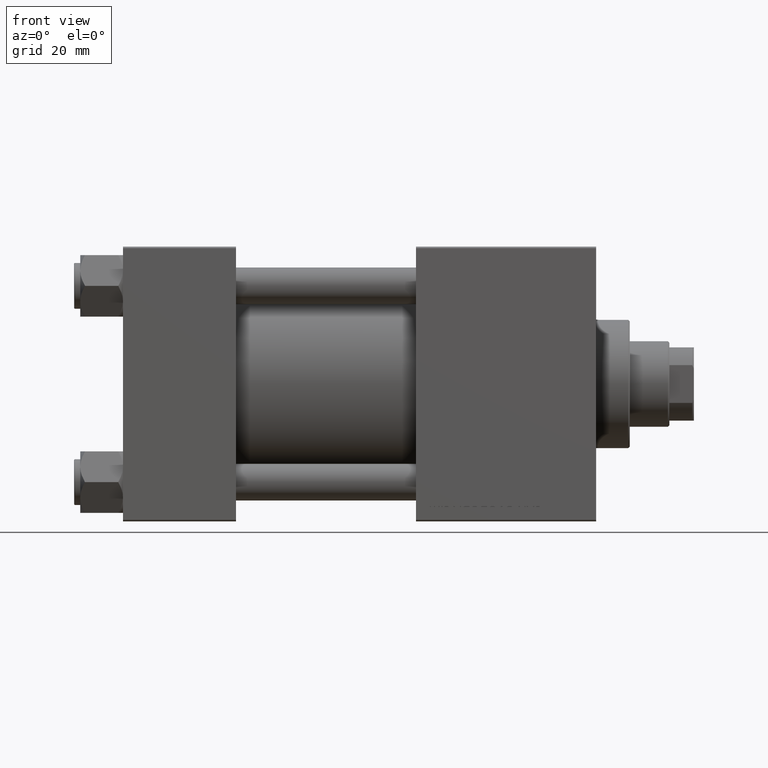
[diagram: clean part render]
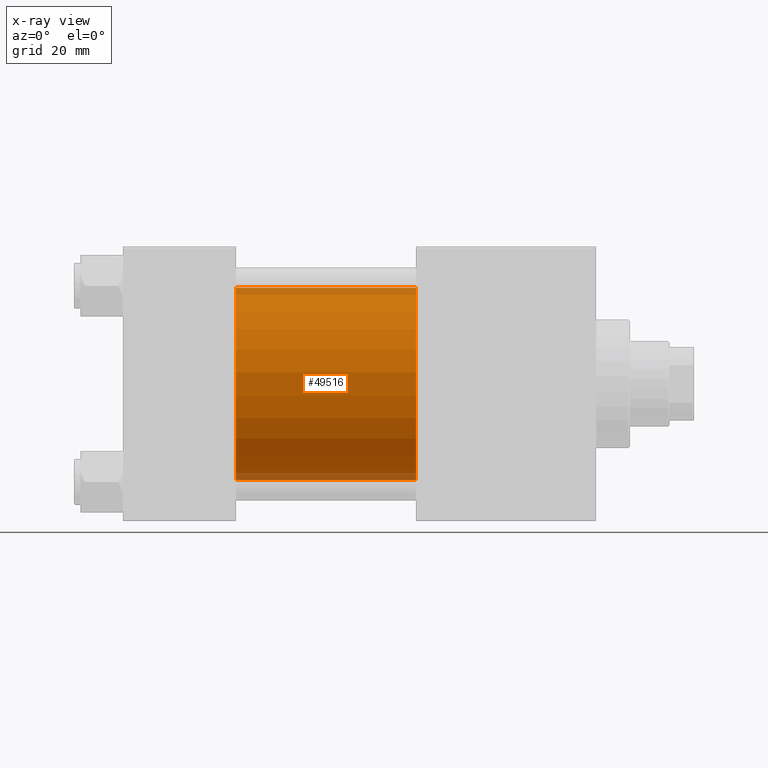
[diagram: x-ray — body ghosted, one internal face saturated and labeled with its STEP entity id]
A machine part, front view, then the same camera in x-ray: the body is ghosted and one INTERNAL B-rep face — a face not visible from any outside direction — is saturated and labeled: STEP entity #49516.
In plain terms, the highlighted cylindrical surface (partial cylindrical patch) has radius 31.5 mm, axis along (-1, -0, -0).
Its self-contained STEP definition (entity closure, byte-faithful):
#689 = CARTESIAN_POINT ( 'NONE',  ( 37.00000000000000000, -2.602085213965210642E-15, 0.000000000000000000 ) ) ;
#1721 = CARTESIAN_POINT ( 'NONE',  ( 96.00000000000000000, -2.602085213965210642E-15, 31.50000000000000000 ) ) ;
#2615 = CARTESIAN_POINT ( 'NONE',  ( 96.00000000000000000, -2.602085213965210642E-15, 0.000000000000000000 ) ) ;
#3165 = VERTEX_POINT ( 'NONE', #9046 ) ;
#4041 = CARTESIAN_POINT ( 'NONE',  ( 37.00000000000000000, -2.602085213965210642E-15, 31.50000000000000000 ) ) ;
#4618 = CARTESIAN_POINT ( 'NONE',  ( 96.00000000000000000, -2.602085213965210642E-15, 0.000000000000000000 ) ) ;
#6233 = AXIS2_PLACEMENT_3D ( 'NONE', #4618, #31532, #47017 ) ;
#6420 = CYLINDRICAL_SURFACE ( 'NONE', #39509, 31.50000000000000000 ) ;
#6724 = VERTEX_POINT ( 'NONE', #1721 ) ;
#9046 = CARTESIAN_POINT ( 'NONE',  ( 37.00000000000000000, 1.255552203348951850E-15, -31.50000000000000000 ) ) ;
#9156 = LINE ( 'NONE', #9408, #39648 ) ;
#9408 = CARTESIAN_POINT ( 'NONE',  ( 96.00000000000000000, 1.255552203348951850E-15, -31.50000000000000000 ) ) ;
#12465 = VERTEX_POINT ( 'NONE', #4041 ) ;
#13436 = DIRECTION ( 'NONE',  ( -1.000000000000000000, -0.000000000000000000, -0.000000000000000000 ) ) ;
#14493 = CARTESIAN_POINT ( 'NONE',  ( 96.00000000000000000, 1.255552203348951850E-15, -31.50000000000000000 ) ) ;
#15059 = CIRCLE ( 'NONE', #32883, 31.50000000000000000 ) ;
#16164 = DIRECTION ( 'NONE',  ( 1.000000000000000000, 0.000000000000000000, 0.000000000000000000 ) ) ;
#17233 = LINE ( 'NONE', #40598, #36238 ) ;
#18073 = DIRECTION ( 'NONE',  ( -1.000000000000000000, -0.000000000000000000, -0.000000000000000000 ) ) ;
#21259 = EDGE_CURVE ( 'NONE', #12465, #3165, #15059, .T. ) ;
#22520 = ORIENTED_EDGE ( 'NONE', *, *, #24890, .F. ) ;
#23426 = EDGE_CURVE ( 'NONE', #6724, #27384, #48408, .T. ) ;
#24877 = DIRECTION ( 'NONE',  ( -1.000000000000000000, -0.000000000000000000, -0.000000000000000000 ) ) ;
#24890 = EDGE_CURVE ( 'NONE', #6724, #12465, #17233, .T. ) ;
#26012 = ORIENTED_EDGE ( 'NONE', *, *, #29143, .T. ) ;
#27384 = VERTEX_POINT ( 'NONE', #14493 ) ;
#29143 = EDGE_CURVE ( 'NONE', #27384, #3165, #9156, .T. ) ;
#31532 = DIRECTION ( 'NONE',  ( 1.000000000000000000, 0.000000000000000000, 0.000000000000000000 ) ) ;
#31666 = DIRECTION ( 'NONE',  ( 0.000000000000000000, 0.000000000000000000, -1.000000000000000000 ) ) ;
#32883 = AXIS2_PLACEMENT_3D ( 'NONE', #689, #16164, #31666 ) ;
#36238 = VECTOR ( 'NONE', #13436, 1000.000000000000000 ) ;
#37369 = FACE_OUTER_BOUND ( 'NONE', #49987, .T. ) ;
#39509 = AXIS2_PLACEMENT_3D ( 'NONE', #2615, #18073, #49306 ) ;
#39648 = VECTOR ( 'NONE', #24877, 1000.000000000000000 ) ;
#40598 = CARTESIAN_POINT ( 'NONE',  ( 96.00000000000000000, -2.602085213965210642E-15, 31.50000000000000000 ) ) ;
#41073 = ORIENTED_EDGE ( 'NONE', *, *, #23426, .T. ) ;
#46317 = ORIENTED_EDGE ( 'NONE', *, *, #21259, .F. ) ;
#47017 = DIRECTION ( 'NONE',  ( 0.000000000000000000, 0.000000000000000000, -1.000000000000000000 ) ) ;
#48408 = CIRCLE ( 'NONE', #6233, 31.50000000000000000 ) ;
#49306 = DIRECTION ( 'NONE',  ( 0.000000000000000000, 0.000000000000000000, 1.000000000000000000 ) ) ;
#49516 = ADVANCED_FACE ( 'NONE', ( #37369 ), #6420, .F. ) ;
#49987 = EDGE_LOOP ( 'NONE', ( #41073, #26012, #46317, #22520 ) ) ;